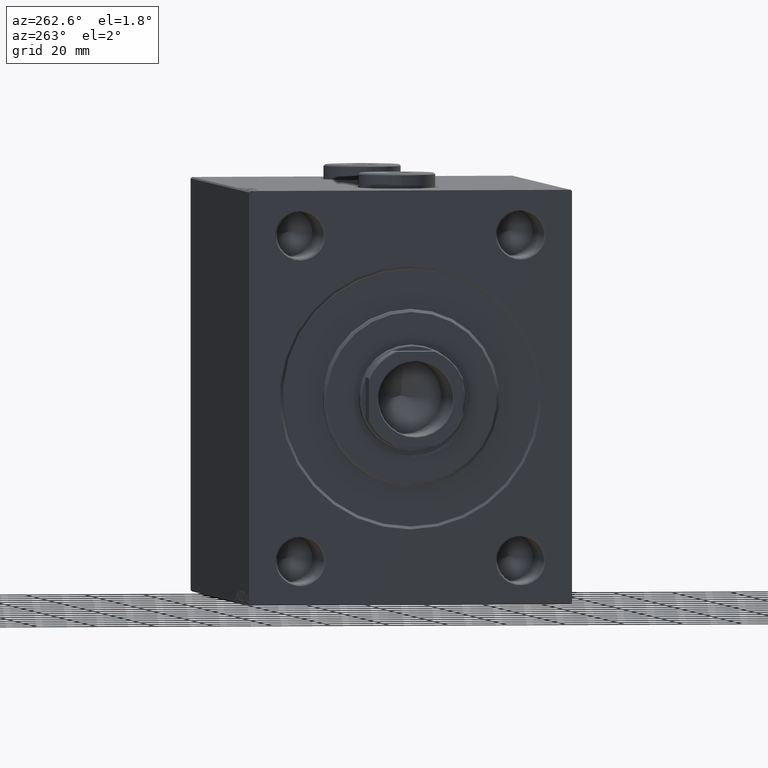
[diagram: clean part render]
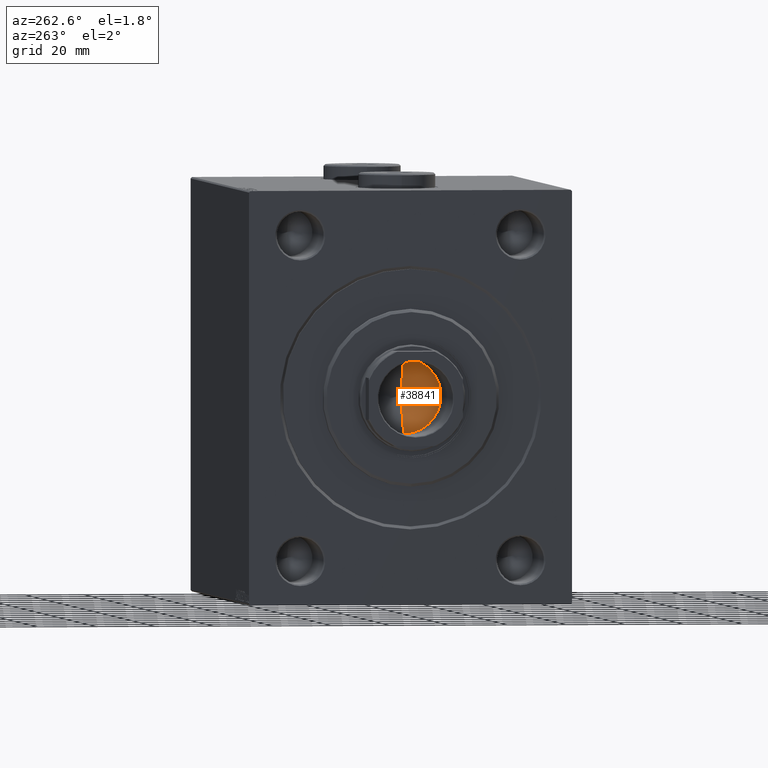
[diagram: same view with one face highlighted and labeled with its STEP entity id]
A machine part, auxiliary view. The second image highlights one B-rep face of the part: STEP entity #38841.
In plain terms, the highlighted conical surface has half-angle 59 deg.
Its self-contained STEP definition (entity closure, byte-faithful):
#139 = CIRCLE ( 'NONE', #12651, 12.74999999999999467 ) ;
#331 = DIRECTION ( 'NONE',  ( 1.000000000000000000, 0.000000000000000000, 0.000000000000000000 ) ) ;
#422 = CARTESIAN_POINT ( 'NONE',  ( -12.74999999999999467, 1.561424668912874519E-15, 114.0000000000000142 ) ) ;
#547 = DIRECTION ( 'NONE',  ( 1.000000000000000000, 0.000000000000000000, 0.000000000000000000 ) ) ;
#551 = CARTESIAN_POINT ( 'NONE',  ( 0.000000000000000000, 0.000000000000000000, 114.0000000000000142 ) ) ;
#942 = EDGE_LOOP ( 'NONE', ( #44333, #26778, #7860 ) ) ;
#1238 = CARTESIAN_POINT ( 'NONE',  ( -12.74999999999999467, 1.561424668912874519E-15, 114.0000000000000142 ) ) ;
#5170 = LINE ( 'NONE', #1238, #23933 ) ;
#6234 = EDGE_CURVE ( 'NONE', #27311, #14305, #5170, .T. ) ;
#7688 = DIRECTION ( 'NONE',  ( -0.000000000000000000, -0.000000000000000000, 1.000000000000000000 ) ) ;
#7860 = ORIENTED_EDGE ( 'NONE', *, *, #28843, .T. ) ;
#8609 = FACE_OUTER_BOUND ( 'NONE', #942, .T. ) ;
#10361 = VECTOR ( 'NONE', #19658, 1000.000000000000000 ) ;
#12037 = CARTESIAN_POINT ( 'NONE',  ( 12.74999999999999467, 0.000000000000000000, 114.0000000000000142 ) ) ;
#12651 = AXIS2_PLACEMENT_3D ( 'NONE', #551, #21787, #331 ) ;
#14305 = VERTEX_POINT ( 'NONE', #422 ) ;
#15322 = DIRECTION ( 'NONE',  ( -0.8571673007021118895, 1.049727191138618079E-16, 0.5150380749100549327 ) ) ;
#16029 = CONICAL_SURFACE ( 'NONE', #19724, 12.74999999999999467, 1.029744258676653645 ) ;
#19568 = VERTEX_POINT ( 'NONE', #42989 ) ;
#19658 = DIRECTION ( 'NONE',  ( 0.8571673007021118895, 0.000000000000000000, 0.5150380749100549327 ) ) ;
#19724 = AXIS2_PLACEMENT_3D ( 'NONE', #35898, #7688, #547 ) ;
#21787 = DIRECTION ( 'NONE',  ( -0.000000000000000000, -0.000000000000000000, 1.000000000000000000 ) ) ;
#23127 = LINE ( 'NONE', #12037, #10361 ) ;
#23933 = VECTOR ( 'NONE', #15322, 1000.000000000000000 ) ;
#26479 = EDGE_CURVE ( 'NONE', #27311, #19568, #23127, .T. ) ;
#26778 = ORIENTED_EDGE ( 'NONE', *, *, #6234, .T. ) ;
#27311 = VERTEX_POINT ( 'NONE', #40026 ) ;
#28843 = EDGE_CURVE ( 'NONE', #14305, #19568, #139, .T. ) ;
#35898 = CARTESIAN_POINT ( 'NONE',  ( 0.000000000000000000, 0.000000000000000000, 114.0000000000000142 ) ) ;
#38841 = ADVANCED_FACE ( 'NONE', ( #8609 ), #16029, .F. ) ;
#40026 = CARTESIAN_POINT ( 'NONE',  ( -1.026246296720136938E-14, 0.000000000000000000, 106.3390271073986213 ) ) ;
#42989 = CARTESIAN_POINT ( 'NONE',  ( 12.74999999999999467, 0.000000000000000000, 114.0000000000000142 ) ) ;
#44333 = ORIENTED_EDGE ( 'NONE', *, *, #26479, .F. ) ;